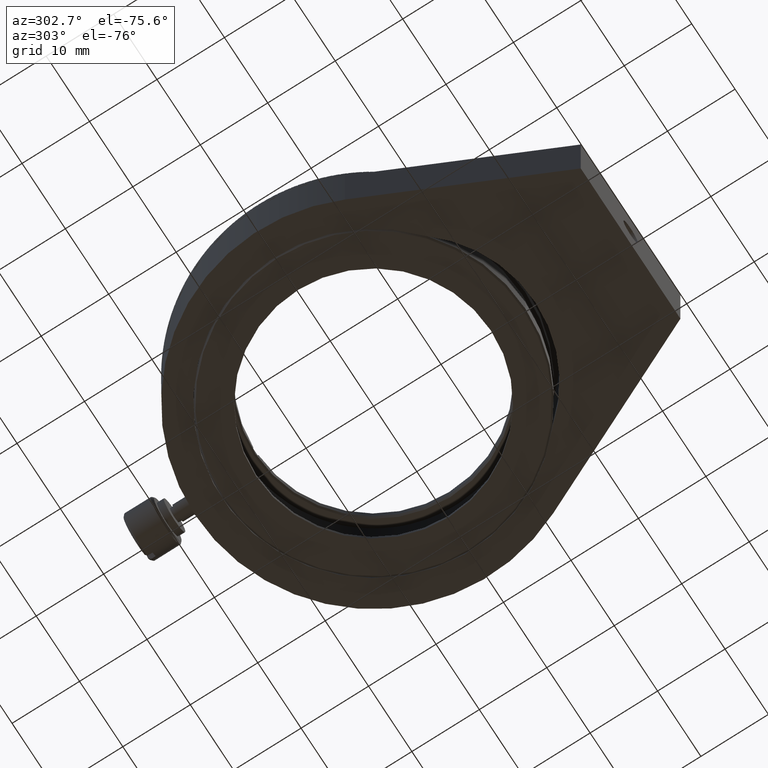
[diagram: clean part render]
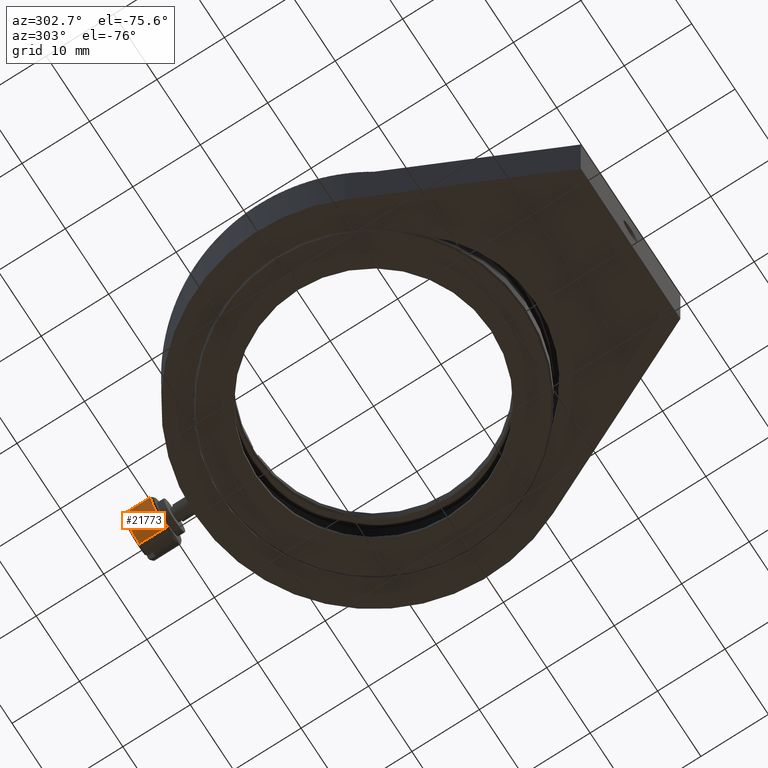
[diagram: same view with one face highlighted and labeled with its STEP entity id]
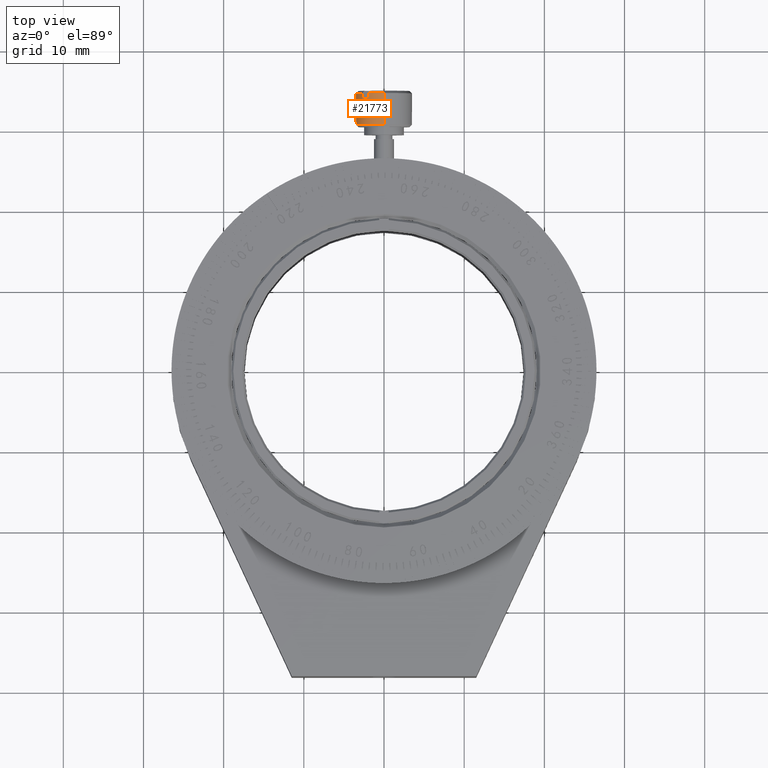
[diagram: same view with one face highlighted and labeled with its STEP entity id]
A machine part, auxiliary view. The second image highlights one B-rep face of the part: STEP entity #21773.
A second angle (top view) of the same face is appended — the face is thin or edge-on in the first view.
In plain terms, the highlighted cylindrical surface (edge-blend (fillet) strip) has radius 3.5 mm, axis along (0, -1, -0).
Its self-contained STEP definition (entity closure, byte-faithful):
#575 = CARTESIAN_POINT ( 'NONE',  ( 0.000000000000000000, 35.00000000000000000, 2.499999999999997335 ) ) ;
#1037 = CARTESIAN_POINT ( 'NONE',  ( 0.000000000000000000, 34.00000000000000000, 5.999999999999997335 ) ) ;
#1521 = EDGE_CURVE ( 'NONE', #2188, #18800, #27579, .T. ) ;
#2188 = VERTEX_POINT ( 'NONE', #12128 ) ;
#2484 = ORIENTED_EDGE ( 'NONE', *, *, #1521, .T. ) ;
#2677 = CIRCLE ( 'NONE', #11696, 3.500000000000000000 ) ;
#3274 = ORIENTED_EDGE ( 'NONE', *, *, #43396, .T. ) ;
#3541 = ORIENTED_EDGE ( 'NONE', *, *, #15091, .T. ) ;
#5031 = LINE ( 'NONE', #38773, #49376 ) ;
#6012 = VERTEX_POINT ( 'NONE', #12249 ) ;
#7714 = CARTESIAN_POINT ( 'NONE',  ( -2.677996532062949964, 34.00000000000000000, 8.253516047038226944 ) ) ;
#8026 = DIRECTION ( 'NONE',  ( 0.000000000000000000, 1.000000000000000000, 0.000000000000000000 ) ) ;
#8528 = VERTEX_POINT ( 'NONE', #59212 ) ;
#9073 = CARTESIAN_POINT ( 'NONE',  ( 0.000000000000000000, 35.00000000000000000, 5.999999999999997335 ) ) ;
#9646 = CIRCLE ( 'NONE', #33771, 3.500000000000000000 ) ;
#11696 = AXIS2_PLACEMENT_3D ( 'NONE', #27271, #51245, #22221 ) ;
#12128 = CARTESIAN_POINT ( 'NONE',  ( -2.677996532062950408, 34.00000000000000000, 8.253516047038226944 ) ) ;
#12249 = CARTESIAN_POINT ( 'NONE',  ( -1.931432708037199131, 34.00000000000000000, 8.918829850183815466 ) ) ;
#14386 = DIRECTION ( 'NONE',  ( 0.000000000000000000, -1.000000000000000000, -0.000000000000000000 ) ) ;
#14425 = VERTEX_POINT ( 'NONE', #47590 ) ;
#14526 = ORIENTED_EDGE ( 'NONE', *, *, #30283, .T. ) ;
#15091 = EDGE_CURVE ( 'NONE', #14425, #8528, #48518, .T. ) ;
#18800 = VERTEX_POINT ( 'NONE', #59590 ) ;
#19293 = AXIS2_PLACEMENT_3D ( 'NONE', #57595, #14386, #42785 ) ;
#21773 = ADVANCED_FACE ( 'NONE', ( #38083 ), #61441, .T. ) ;
#22221 = DIRECTION ( 'NONE',  ( 0.000000000000000000, 0.000000000000000000, -1.000000000000000000 ) ) ;
#23269 = DIRECTION ( 'NONE',  ( 0.000000000000000000, 0.000000000000000000, -1.000000000000000000 ) ) ;
#23355 = EDGE_CURVE ( 'NONE', #2188, #6012, #29696, .T. ) ;
#26117 = CARTESIAN_POINT ( 'NONE',  ( 4.286263797015736595E-16, 35.00000000000000000, 9.499999999999998224 ) ) ;
#26219 = DIRECTION ( 'NONE',  ( 0.000000000000000000, 0.000000000000000000, -1.000000000000000000 ) ) ;
#27271 = CARTESIAN_POINT ( 'NONE',  ( 0.000000000000000000, 30.80000000000000071, 5.999999999999997335 ) ) ;
#27579 = LINE ( 'NONE', #7714, #41480 ) ;
#29696 = CIRCLE ( 'NONE', #54879, 3.500000000000000000 ) ;
#30055 = DIRECTION ( 'NONE',  ( 3.552713678800500929E-15, 0.000000000000000000, -1.000000000000000000 ) ) ;
#30283 = EDGE_CURVE ( 'NONE', #18800, #14425, #43455, .T. ) ;
#30859 = VERTEX_POINT ( 'NONE', #55506 ) ;
#30952 = AXIS2_PLACEMENT_3D ( 'NONE', #9073, #57328, #23269 ) ;
#33697 = CARTESIAN_POINT ( 'NONE',  ( 4.286263797015736102E-16, 34.70000000000000284, 9.499999999999998224 ) ) ;
#33771 = AXIS2_PLACEMENT_3D ( 'NONE', #59024, #45147, #26219 ) ;
#37718 = EDGE_LOOP ( 'NONE', ( #52027, #57164, #3274, #48332, #2484, #14526, #3541, #44750 ) ) ;
#38083 = FACE_OUTER_BOUND ( 'NONE', #37718, .T. ) ;
#38773 = CARTESIAN_POINT ( 'NONE',  ( -1.931432708037199131, 34.00000000000000000, 8.918829850183815466 ) ) ;
#39201 = DIRECTION ( 'NONE',  ( -0.000000000000000000, 1.000000000000000000, 0.000000000000000000 ) ) ;
#41480 = VECTOR ( 'NONE', #8026, 1000.000000000000000 ) ;
#42494 = EDGE_CURVE ( 'NONE', #49220, #58953, #58924, .T. ) ;
#42785 = DIRECTION ( 'NONE',  ( 0.000000000000000000, 0.000000000000000000, -1.000000000000000000 ) ) ;
#43396 = EDGE_CURVE ( 'NONE', #30859, #6012, #5031, .T. ) ;
#43455 = CIRCLE ( 'NONE', #19293, 3.500000000000000000 ) ;
#44130 = DIRECTION ( 'NONE',  ( 0.000000000000000000, -1.000000000000000000, -0.000000000000000000 ) ) ;
#44715 = DIRECTION ( 'NONE',  ( 0.000000000000000000, -1.000000000000000000, -0.000000000000000000 ) ) ;
#44750 = ORIENTED_EDGE ( 'NONE', *, *, #56245, .T. ) ;
#45147 = DIRECTION ( 'NONE',  ( 0.000000000000000000, -1.000000000000000000, -0.000000000000000000 ) ) ;
#47590 = CARTESIAN_POINT ( 'NONE',  ( 0.000000000000000000, 34.70000000000000284, 2.499999999978536724 ) ) ;
#48332 = ORIENTED_EDGE ( 'NONE', *, *, #23355, .F. ) ;
#48518 = LINE ( 'NONE', #575, #62169 ) ;
#49124 = CARTESIAN_POINT ( 'NONE',  ( 0.000000000000000000, 30.80000000000000071, 9.499999999951256768 ) ) ;
#49220 = VERTEX_POINT ( 'NONE', #33697 ) ;
#49376 = VECTOR ( 'NONE', #44130, 1000.000000000000000 ) ;
#50409 = DIRECTION ( 'NONE',  ( 0.000000000000000000, -1.000000000000000000, -0.000000000000000000 ) ) ;
#51245 = DIRECTION ( 'NONE',  ( -0.000000000000000000, 1.000000000000000000, 0.000000000000000000 ) ) ;
#52027 = ORIENTED_EDGE ( 'NONE', *, *, #42494, .F. ) ;
#54363 = VECTOR ( 'NONE', #50409, 1000.000000000000000 ) ;
#54879 = AXIS2_PLACEMENT_3D ( 'NONE', #1037, #39201, #30055 ) ;
#54912 = EDGE_CURVE ( 'NONE', #49220, #30859, #9646, .T. ) ;
#55506 = CARTESIAN_POINT ( 'NONE',  ( -1.931432708040315527, 34.70000000000609930, 8.918829850187313113 ) ) ;
#56245 = EDGE_CURVE ( 'NONE', #8528, #58953, #2677, .T. ) ;
#57164 = ORIENTED_EDGE ( 'NONE', *, *, #54912, .T. ) ;
#57328 = DIRECTION ( 'NONE',  ( 0.000000000000000000, -1.000000000000000000, -0.000000000000000000 ) ) ;
#57595 = CARTESIAN_POINT ( 'NONE',  ( 0.000000000000000000, 34.70000000000000284, 5.999999999999997335 ) ) ;
#58924 = LINE ( 'NONE', #26117, #54363 ) ;
#58953 = VERTEX_POINT ( 'NONE', #49124 ) ;
#59024 = CARTESIAN_POINT ( 'NONE',  ( 0.000000000000000000, 34.70000000000000284, 5.999999999999997335 ) ) ;
#59212 = CARTESIAN_POINT ( 'NONE',  ( 4.286263796956046448E-16, 30.80000000000000071, 2.500000000048737459 ) ) ;
#59590 = CARTESIAN_POINT ( 'NONE',  ( -2.677996532062950408, 34.70000000001073914, 8.253516047038226944 ) ) ;
#61441 = CYLINDRICAL_SURFACE ( 'NONE', #30952, 3.500000000000000000 ) ;
#62169 = VECTOR ( 'NONE', #44715, 1000.000000000000000 ) ;